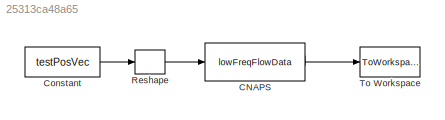
MODEL slx_25313ca48a65
KIND model
CONFIG AbsTol = auto
CONFIG EnableMultiTasking = off
CONFIG FixedStep = auto
CONFIG MaxStep = auto
CONFIG MinStep = auto
CONFIG RelTol = 1e-3
CONFIG SampleTimeConstraint = Unconstrained
CONFIG SolverName = VariableStepAuto
CONFIG StartTime = 0.0
CONFIG StopTime = 0
BLOCK [Reference] CNAPS  REF=lowFreqFlowData_ul/lowFreqFlowData
  Ports = [1, 2]
  SourceBlock = lowFreqFlowData_ul/lowFreqFlowData
  SourceType = SubSystem
BLOCK [Constant] Constant
  Value = testPosVec
BLOCK [Reshape] Reshape
  OutputDimensionality = Column vector (2-D)
  Ports = [1, 1]
BLOCK [ToWorkspace] To Workspace
  FixptAsFi = on
  MaxDataPoints = inf
  Ports = [1]
  SampleTime = -1
  SaveFormat = Timeseries
  VariableName = simout
LINE CNAPS:1 -> To Workspace:1
LINE Constant:1 -> Reshape:1
LINE Reshape:1 -> CNAPS:1
